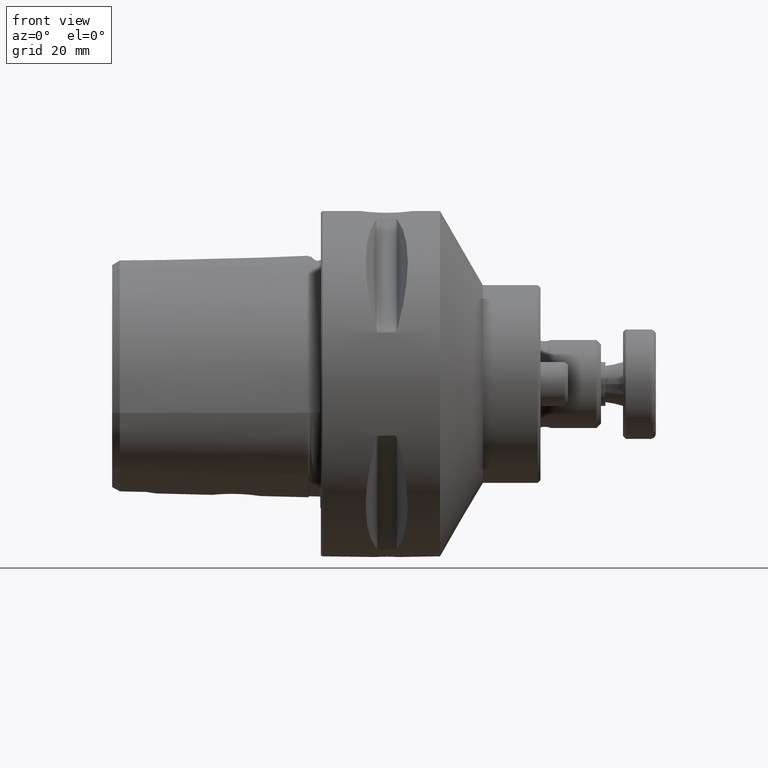
[diagram: clean part render]
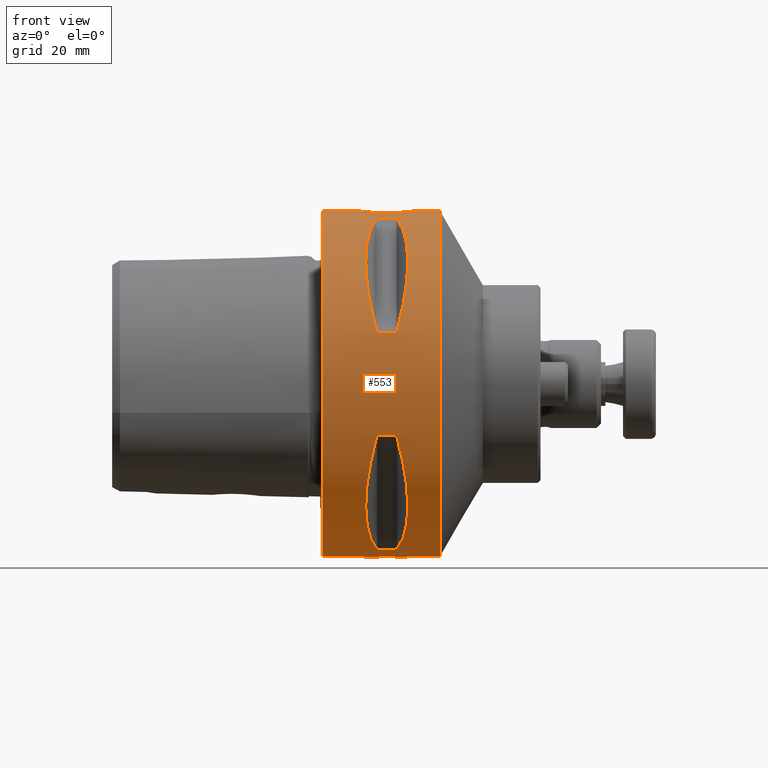
[diagram: same view with one face highlighted and labeled with its STEP entity id]
A machine part, front view. The second image highlights one B-rep face of the part: STEP entity #553.
In plain terms, the highlighted cylindrical surface (bore or boss wall) has radius 31.5 mm, axis along (1, 0, 0).
Its self-contained STEP definition (entity closure, byte-faithful):
#553 = ADVANCED_FACE( '', ( #1175, #1176, #1177, #1178, #1179, #1180, #1181, #1182 ), #1183, .T. );
#1175 = FACE_OUTER_BOUND( '', #1909, .T. );
#1176 = FACE_BOUND( '', #1910, .T. );
#1177 = FACE_BOUND( '', #1911, .T. );
#1178 = FACE_OUTER_BOUND( '', #1912, .T. );
#1179 = FACE_BOUND( '', #1913, .T. );
#1180 = FACE_BOUND( '', #1914, .T. );
#1181 = FACE_BOUND( '', #1915, .T. );
#1182 = FACE_BOUND( '', #1916, .T. );
#1183 = CYLINDRICAL_SURFACE( '', #1917, 31.5000000000000 );
#1909 = EDGE_LOOP( '', ( #3054 ) );
#1910 = EDGE_LOOP( '', ( #3055 ) );
#1911 = EDGE_LOOP( '', ( #3056 ) );
#1912 = EDGE_LOOP( '', ( #3057 ) );
#1913 = EDGE_LOOP( '', ( #3058, #3059, #3060, #3061, #3062, #3063, #3064, #3065 ) );
#1914 = EDGE_LOOP( '', ( #3066, #3067, #3068, #3069, #3070, #3071, #3072, #3073 ) );
#1915 = EDGE_LOOP( '', ( #3074, #3075, #3076, #3077, #3078, #3079, #3080, #3081 ) );
#1916 = EDGE_LOOP( '', ( #3082, #3083, #3084, #3085, #3086, #3087, #3088, #3089 ) );
#1917 = AXIS2_PLACEMENT_3D( '', #3090, #3091, #3092 );
#3054 = ORIENTED_EDGE( '', *, *, #3991, .F. );
#3055 = ORIENTED_EDGE( '', *, *, #4240, .F. );
#3056 = ORIENTED_EDGE( '', *, *, #4241, .F. );
#3057 = ORIENTED_EDGE( '', *, *, #4242, .T. );
#3058 = ORIENTED_EDGE( '', *, *, #4219, .T. );
#3059 = ORIENTED_EDGE( '', *, *, #4243, .F. );
#3060 = ORIENTED_EDGE( '', *, *, #4244, .F. );
#3061 = ORIENTED_EDGE( '', *, *, #3902, .F. );
#3062 = ORIENTED_EDGE( '', *, *, #4130, .T. );
#3063 = ORIENTED_EDGE( '', *, *, #3904, .T. );
#3064 = ORIENTED_EDGE( '', *, *, #4245, .T. );
#3065 = ORIENTED_EDGE( '', *, *, #4246, .T. );
#3066 = ORIENTED_EDGE( '', *, *, #4236, .T. );
#3067 = ORIENTED_EDGE( '', *, *, #4247, .F. );
#3068 = ORIENTED_EDGE( '', *, *, #3934, .F. );
#3069 = ORIENTED_EDGE( '', *, *, #4248, .F. );
#3070 = ORIENTED_EDGE( '', *, *, #4249, .T. );
#3071 = ORIENTED_EDGE( '', *, *, #4250, .T. );
#3072 = ORIENTED_EDGE( '', *, *, #3936, .T. );
#3073 = ORIENTED_EDGE( '', *, *, #4251, .T. );
#3074 = ORIENTED_EDGE( '', *, *, #4112, .T. );
#3075 = ORIENTED_EDGE( '', *, *, #4154, .F. );
#3076 = ORIENTED_EDGE( '', *, *, #4252, .F. );
#3077 = ORIENTED_EDGE( '', *, *, #4183, .F. );
#3078 = ORIENTED_EDGE( '', *, *, #4253, .T. );
#3079 = ORIENTED_EDGE( '', *, *, #4185, .T. );
#3080 = ORIENTED_EDGE( '', *, *, #4254, .T. );
#3081 = ORIENTED_EDGE( '', *, *, #4155, .T. );
#3082 = ORIENTED_EDGE( '', *, *, #4233, .T. );
#3083 = ORIENTED_EDGE( '', *, *, #4255, .F. );
#3084 = ORIENTED_EDGE( '', *, *, #4256, .F. );
#3085 = ORIENTED_EDGE( '', *, *, #4257, .F. );
#3086 = ORIENTED_EDGE( '', *, *, #4069, .T. );
#3087 = ORIENTED_EDGE( '', *, *, #4258, .T. );
#3088 = ORIENTED_EDGE( '', *, *, #4259, .T. );
#3089 = ORIENTED_EDGE( '', *, *, #4260, .T. );
#3090 = CARTESIAN_POINT( '', ( -0.100000000000003, 0.000000000000000, 5.40241950567483E-015 ) );
#3091 = DIRECTION( '', ( 1.00000000000000, -0.000000000000000, 6.95237284268055E-017 ) );
#3092 = DIRECTION( '', ( -6.95237284268055E-017, 0.000000000000000, 1.00000000000000 ) );
#3902 = EDGE_CURVE( '', #4523, #4525, #4526, .T. );
#3904 = EDGE_CURVE( '', #4522, #4527, #4529, .T. );
#3934 = EDGE_CURVE( '', #4574, #4576, #4577, .T. );
#3936 = EDGE_CURVE( '', #4573, #4578, #4580, .T. );
#3991 = EDGE_CURVE( '', #4671, #4671, #4672, .F. );
#4069 = EDGE_CURVE( '', #4800, #4801, #4802, .F. );
#4112 = EDGE_CURVE( '', #4863, #4864, #4866, .F. );
#4130 = EDGE_CURVE( '', #4523, #4522, #4888, .F. );
#4154 = EDGE_CURVE( '', #4920, #4864, #4922, .T. );
#4155 = EDGE_CURVE( '', #4919, #4863, #4923, .T. );
#4183 = EDGE_CURVE( '', #4962, #4964, #4965, .T. );
#4185 = EDGE_CURVE( '', #4961, #4966, #4968, .T. );
#4219 = EDGE_CURVE( '', #5019, #5020, #5022, .F. );
#4233 = EDGE_CURVE( '', #5039, #5040, #5042, .F. );
#4236 = EDGE_CURVE( '', #5044, #5045, #5047, .F. );
#4240 = EDGE_CURVE( '', #5052, #5052, #5053, .F. );
#4241 = EDGE_CURVE( '', #5054, #5054, #5055, .F. );
#4242 = EDGE_CURVE( '', #5056, #5056, #5057, .F. );
#4243 = EDGE_CURVE( '', #5058, #5020, #5059, .T. );
#4244 = EDGE_CURVE( '', #4525, #5058, #5060, .T. );
#4245 = EDGE_CURVE( '', #4527, #5061, #5062, .T. );
#4246 = EDGE_CURVE( '', #5061, #5019, #5063, .T. );
#4247 = EDGE_CURVE( '', #4576, #5045, #5064, .T. );
#4248 = EDGE_CURVE( '', #5065, #4574, #5066, .T. );
#4249 = EDGE_CURVE( '', #5065, #5067, #5068, .F. );
#4250 = EDGE_CURVE( '', #5067, #4573, #5069, .T. );
#4251 = EDGE_CURVE( '', #4578, #5044, #5070, .T. );
#4252 = EDGE_CURVE( '', #4964, #4920, #5071, .T. );
#4253 = EDGE_CURVE( '', #4962, #4961, #5072, .F. );
#4254 = EDGE_CURVE( '', #4966, #4919, #5073, .T. );
#4255 = EDGE_CURVE( '', #5074, #5040, #5075, .T. );
#4256 = EDGE_CURVE( '', #5076, #5074, #5077, .T. );
#4257 = EDGE_CURVE( '', #4800, #5076, #5078, .T. );
#4258 = EDGE_CURVE( '', #4801, #5079, #5080, .T. );
#4259 = EDGE_CURVE( '', #5079, #5081, #5082, .T. );
#4260 = EDGE_CURVE( '', #5081, #5039, #5083, .T. );
#4522 = VERTEX_POINT( '', #5476 );
#4523 = VERTEX_POINT( '', #5477 );
#4525 = VERTEX_POINT( '', #5480 );
#4526 = B_SPLINE_CURVE_WITH_KNOTS( '', 3, ( #5481, #5482, #5483, #5484, #5485, #5486, #5487, #5488 ), .UNSPECIFIED., .F., .F., ( 4, 2, 2, 4 ), ( 3.50826111497558E-017, 0.000369746110241005, 0.000554619165361487, 0.000739492220481968 ), .UNSPECIFIED. );
#4527 = VERTEX_POINT( '', #5489 );
#4529 = B_SPLINE_CURVE_WITH_KNOTS( '', 3, ( #5492, #5493, #5494, #5495, #5496, #5497, #5498, #5499 ), .UNSPECIFIED., .F., .F., ( 4, 2, 2, 4 ), ( 9.96522768216898E-018, 0.000369907473114521, 0.000554861209671774, 0.000739814946229027 ), .UNSPECIFIED. );
#4573 = VERTEX_POINT( '', #5564 );
#4574 = VERTEX_POINT( '', #5565 );
#4576 = VERTEX_POINT( '', #5568 );
#4577 = LINE( '', #5569, #5570 );
#4578 = VERTEX_POINT( '', #5571 );
#4580 = LINE( '', #5574, #5575 );
#4671 = VERTEX_POINT( '', #5752 );
#4672 = CIRCLE( '', #5753, 31.5000000000000 );
#4800 = VERTEX_POINT( '', #5931 );
#4801 = VERTEX_POINT( '', #5932 );
#4802 = ELLIPSE( '', #5933, 36.3730669589464, 31.5000000000000 );
#4863 = VERTEX_POINT( '', #6049 );
#4864 = VERTEX_POINT( '', #6050 );
#4866 = ELLIPSE( '', #6053, 36.3730669589465, 31.5000000000000 );
#4888 = ELLIPSE( '', #6077, 36.3730669589464, 31.5000000000000 );
#4919 = VERTEX_POINT( '', #6181 );
#4920 = VERTEX_POINT( '', #6182 );
#4922 = B_SPLINE_CURVE_WITH_KNOTS( '', 3, ( #6185, #6186, #6187, #6188, #6189, #6190, #6191, #6192 ), .UNSPECIFIED., .F., .F., ( 4, 2, 2, 4 ), ( 1.73472347597681E-018, 0.000186192182164239, 0.000372384364328477, 0.000744768728656948 ), .UNSPECIFIED. );
#4923 = B_SPLINE_CURVE_WITH_KNOTS( '', 3, ( #6193, #6194, #6195, #6196, #6197, #6198, #6199, #6200 ), .UNSPECIFIED., .F., .F., ( 4, 2, 2, 4 ), ( 0.000000000000000, 0.000186260342528724, 0.000372520685057447, 0.000745041370114899 ), .UNSPECIFIED. );
#4961 = VERTEX_POINT( '', #6267 );
#4962 = VERTEX_POINT( '', #6268 );
#4964 = VERTEX_POINT( '', #6271 );
#4965 = B_SPLINE_CURVE_WITH_KNOTS( '', 3, ( #6272, #6273, #6274, #6275, #6276, #6277, #6278, #6279 ), .UNSPECIFIED., .F., .F., ( 4, 2, 2, 4 ), ( 9.96522768216898E-018, 0.000369746110240995, 0.000554619165361486, 0.000739492220481977 ), .UNSPECIFIED. );
#4966 = VERTEX_POINT( '', #6280 );
#4968 = B_SPLINE_CURVE_WITH_KNOTS( '', 3, ( #6283, #6284, #6285, #6286, #6287, #6288, #6289, #6290 ), .UNSPECIFIED., .F., .F., ( 4, 2, 2, 4 ), ( 1.36592263090745E-017, 0.000369907473114555, 0.000554861209671828, 0.000739814946229101 ), .UNSPECIFIED. );
#5019 = VERTEX_POINT( '', #6427 );
#5020 = VERTEX_POINT( '', #6428 );
#5022 = ELLIPSE( '', #6431, 36.3730669589465, 31.5000000000000 );
#5039 = VERTEX_POINT( '', #6453 );
#5040 = VERTEX_POINT( '', #6454 );
#5042 = ELLIPSE( '', #6457, 36.3730669589465, 31.5000000000000 );
#5044 = VERTEX_POINT( '', #6459 );
#5045 = VERTEX_POINT( '', #6460 );
#5047 = ELLIPSE( '', #6463, 36.3730669589465, 31.5000000000000 );
#5052 = VERTEX_POINT( '', #6468 );
#5053 = B_SPLINE_CURVE_WITH_KNOTS( '', 3, ( #6469, #6470, #6471, #6472, #6473, #6474, #6475, #6476, #6477, #6478, #6479, #6480, #6481, #6482, #6483, #6484, #6485, #6486, #6487, #6488, #6489, #6490, #6491, #6492, #6493, #6494, #6495, #6496, #6497, #6498, #6499, #6500, #6501, #6502, #6503, #6504, #6505, #6506, #6507, #6508, #6509, #6510, #6511, #6512, #6513, #6514, #6515, #6516, #6517, #6518, #6519, #6520, #6521, #6522, #6523, #6524, #6525, #6526, #6527, #6528, #6529, #6530, #6531, #6532, #6533, #6534, #6535, #6536, #6537, #6538 ), .UNSPECIFIED., .T., .F., ( 2, 2, 2, 2, 2, 2, 2, 2, 2, 2, 2, 2, 2, 2, 2, 2, 2, 2, 2, 2, 2, 2, 2, 2, 2, 2, 2, 2, 2, 2, 2, 2, 2, 2, 2, 2, 2 ), ( -0.000911095599910649, 0.000000000000000, 0.000911095599910650, 0.00182219119982130, 0.00273328679973195, 0.00318883459968728, 0.00364438239964260, 0.00455547799955325, 0.00546657359946390, 0.00637766919937455, 0.00728876479928520, 0.00819986039919585, 0.00911095599910650, 0.0100220515990171, 0.0109331471989278, 0.0118442427988384, 0.0127553383987491, 0.0136664339986597, 0.0145775295985704, 0.0154886251984810, 0.0163997207983917, 0.0173108163983023, 0.0182219119982130, 0.0186774597981683, 0.0191330075981236, 0.0200441031980343, 0.0209551987979449, 0.0218662943978556, 0.0227773899977662, 0.0236884855976769, 0.0245995811975875, 0.0255106767974982, 0.0264217723974088, 0.0273328679973195, 0.0282439635972301, 0.0291550591971408, 0.0300661547970514 ), .UNSPECIFIED. );
#5054 = VERTEX_POINT( '', #6539 );
#5055 = B_SPLINE_CURVE_WITH_KNOTS( '', 3, ( #6540, #6541, #6542, #6543, #6544, #6545, #6546, #6547, #6548, #6549, #6550, #6551, #6552, #6553, #6554, #6555, #6556, #6557, #6558, #6559, #6560, #6561, #6562, #6563, #6564, #6565, #6566, #6567, #6568, #6569, #6570, #6571, #6572, #6573, #6574, #6575, #6576, #6577, #6578, #6579, #6580, #6581, #6582, #6583, #6584, #6585, #6586, #6587, #6588, #6589, #6590, #6591, #6592, #6593, #6594, #6595 ), .UNSPECIFIED., .T., .F., ( 2, 2, 2, 2, 2, 2, 2, 2, 2, 2, 2, 2, 2, 2, 2, 2, 2, 2, 2, 2, 2, 2, 2, 2, 2, 2, 2, 2, 2, 2 ), ( -0.000781720966296071, 0.000000000000000, 0.000390860483148034, 0.000781720966296069, 0.00117258144944410, 0.00156344193259214, 0.00234516289888820, 0.00312688386518427, 0.00351774434833231, 0.00390860483148035, 0.00429946531462838, 0.00469032579777642, 0.00508118628092445, 0.00547204676407249, 0.00586290724722053, 0.00625376773036856, 0.00703548869666463, 0.00781720966296071, 0.00820807014610874, 0.00859893062925678, 0.00898979111240481, 0.00938065159555285, 0.00977151207870088, 0.0101623725618489, 0.0105532330449970, 0.0109440935281450, 0.0113349540112930, 0.0117258144944411, 0.0125075354607371, 0.0128983959438852 ), .UNSPECIFIED. );
#5056 = VERTEX_POINT( '', #6596 );
#5057 = CIRCLE( '', #6597, 31.5000000000000 );
#5058 = VERTEX_POINT( '', #6598 );
#5059 = B_SPLINE_CURVE_WITH_KNOTS( '', 3, ( #6599, #6600, #6601, #6602, #6603, #6604, #6605, #6606 ), .UNSPECIFIED., .F., .F., ( 4, 2, 2, 4 ), ( 1.73472347597681E-018, 0.000186192182164238, 0.000372384364328473, 0.000744768728656952 ), .UNSPECIFIED. );
#5060 = LINE( '', #6607, #6608 );
#5061 = VERTEX_POINT( '', #6609 );
#5062 = LINE( '', #6610, #6611 );
#5063 = B_SPLINE_CURVE_WITH_KNOTS( '', 3, ( #6612, #6613, #6614, #6615, #6616, #6617, #6618, #6619 ), .UNSPECIFIED., .F., .F., ( 4, 2, 2, 4 ), ( 0.000000000000000, 0.000186260342528732, 0.000372520685057464, 0.000745041370114930 ), .UNSPECIFIED. );
#5064 = B_SPLINE_CURVE_WITH_KNOTS( '', 3, ( #6620, #6621, #6622, #6623, #6624, #6625, #6626, #6627 ), .UNSPECIFIED., .F., .F., ( 4, 2, 2, 4 ), ( 5.20417042793042E-018, 0.000186192182164234, 0.000372384364328464, 0.000744768728656915 ), .UNSPECIFIED. );
#5065 = VERTEX_POINT( '', #6628 );
#5066 = B_SPLINE_CURVE_WITH_KNOTS( '', 3, ( #6629, #6630, #6631, #6632, #6633, #6634, #6635, #6636 ), .UNSPECIFIED., .F., .F., ( 4, 2, 2, 4 ), ( 3.20337251735390E-017, 0.000369746110240994, 0.000554619165361476, 0.000739492220481957 ), .UNSPECIFIED. );
#5067 = VERTEX_POINT( '', #6637 );
#5068 = ELLIPSE( '', #6638, 36.3730669589464, 31.5000000000000 );
#5069 = B_SPLINE_CURVE_WITH_KNOTS( '', 3, ( #6639, #6640, #6641, #6642, #6643, #6644, #6645, #6646 ), .UNSPECIFIED., .F., .F., ( 4, 2, 2, 4 ), ( 0.000000000000000, 0.000369907473114539, 0.000554861209671806, 0.000739814946229073 ), .UNSPECIFIED. );
#5070 = B_SPLINE_CURVE_WITH_KNOTS( '', 3, ( #6647, #6648, #6649, #6650, #6651, #6652, #6653, #6654 ), .UNSPECIFIED., .F., .F., ( 4, 2, 2, 4 ), ( 1.73472347597681E-018, 0.000186260342528714, 0.000372520685057427, 0.000745041370114853 ), .UNSPECIFIED. );
#5071 = LINE( '', #6655, #6656 );
#5072 = ELLIPSE( '', #6657, 36.3730669589464, 31.5000000000000 );
#5073 = LINE( '', #6658, #6659 );
#5074 = VERTEX_POINT( '', #6660 );
#5075 = B_SPLINE_CURVE_WITH_KNOTS( '', 3, ( #6661, #6662, #6663, #6664, #6665, #6666, #6667, #6668 ), .UNSPECIFIED., .F., .F., ( 4, 2, 2, 4 ), ( 5.48567729465110E-018, 0.000186192182164240, 0.000372384364328474, 0.000744768728656940 ), .UNSPECIFIED. );
#5076 = VERTEX_POINT( '', #6669 );
#5077 = LINE( '', #6670, #6671 );
#5078 = B_SPLINE_CURVE_WITH_KNOTS( '', 3, ( #6672, #6673, #6674, #6675, #6676, #6677, #6678, #6679 ), .UNSPECIFIED., .F., .F., ( 4, 2, 2, 4 ), ( 3.35479553959893E-017, 0.000369746110240996, 0.000554619165361475, 0.000739492220481954 ), .UNSPECIFIED. );
#5079 = VERTEX_POINT( '', #6680 );
#5080 = B_SPLINE_CURVE_WITH_KNOTS( '', 3, ( #6681, #6682, #6683, #6684, #6685, #6686, #6687, #6688 ), .UNSPECIFIED., .F., .F., ( 4, 2, 2, 4 ), ( 0.000000000000000, 0.000369907473114517, 0.000554861209671777, 0.000739814946229038 ), .UNSPECIFIED. );
#5081 = VERTEX_POINT( '', #6689 );
#5082 = LINE( '', #6690, #6691 );
#5083 = B_SPLINE_CURVE_WITH_KNOTS( '', 3, ( #6692, #6693, #6694, #6695, #6696, #6697, #6698, #6699 ), .UNSPECIFIED., .F., .F., ( 4, 2, 2, 4 ), ( 0.000000000000000, 0.000186260342528727, 0.000372520685057453, 0.000745041370114901 ), .UNSPECIFIED. );
#5476 = CARTESIAN_POINT( '', ( 13.9052558883258, -9.90936932068533, -29.9007424601173 ) );
#5477 = CARTESIAN_POINT( '', ( 13.9052558883258, -29.9007424601173, -9.90936932068530 ) );
#5480 = CARTESIAN_POINT( '', ( 13.4722431864335, -30.0684919588732, -9.38806643133620 ) );
#5481 = CARTESIAN_POINT( '', ( 13.9052558883258, -29.9007424601173, -9.90936932068534 ) );
#5482 = CARTESIAN_POINT( '', ( 13.8741106903637, -29.9385579830375, -9.79526395482003 ) );
#5483 = CARTESIAN_POINT( '', ( 13.8318364240293, -29.9746248411211, -9.68415762760122 ) );
#5484 = CARTESIAN_POINT( '', ( 13.7318908902040, -30.0225849061324, -9.53400002017093 ) );
#5485 = CARTESIAN_POINT( '', ( 13.6921605854999, -30.0374458800300, -9.48700732855355 ) );
#5486 = CARTESIAN_POINT( '', ( 13.5952725354937, -30.0603970261612, -9.41403174401505 ) );
#5487 = CARTESIAN_POINT( '', ( 13.5352072937471, -30.0684919588732, -9.38806643133614 ) );
#5488 = CARTESIAN_POINT( '', ( 13.4722431864335, -30.0684919588732, -9.38806643133614 ) );
#5489 = CARTESIAN_POINT( '', ( 13.4722431864335, -9.38806643133623, -30.0684919588732 ) );
#5492 = CARTESIAN_POINT( '', ( 13.9052558883258, -9.90936932068532, -29.9007424601173 ) );
#5493 = CARTESIAN_POINT( '', ( 13.8740970981216, -9.79521415748825, -29.9385744863117 ) );
#5494 = CARTESIAN_POINT( '', ( 13.8317923581456, -9.68404577222171, -29.9746610444640 ) );
#5495 = CARTESIAN_POINT( '', ( 13.7317833105137, -9.53386126297715, -30.0226289859924 ) );
#5496 = CARTESIAN_POINT( '', ( 13.6919747755344, -9.48682789514486, -30.0375024759582 ) );
#5497 = CARTESIAN_POINT( '', ( 13.5951321106067, -9.41396559223690, -30.0604176673158 ) );
#5498 = CARTESIAN_POINT( '', ( 13.5342953922733, -9.38806643133636, -30.0684919588731 ) );
#5499 = CARTESIAN_POINT( '', ( 13.4722431864335, -9.38806643133636, -30.0684919588731 ) );
#5564 = CARTESIAN_POINT( '', ( 13.4722431864335, 9.38806643133620, 30.0684919588732 ) );
#5565 = CARTESIAN_POINT( '', ( 13.4722431864335, 30.0684919588732, 9.38806643133619 ) );
#5568 = CARTESIAN_POINT( '', ( 10.5277568135664, 30.0684919588732, 9.38806643133623 ) );
#5569 = CARTESIAN_POINT( '', ( -0.100000000000002, 30.0684919588732, 9.38806643133623 ) );
#5570 = VECTOR( '', #7181, 1000.00000000000 );
#5571 = CARTESIAN_POINT( '', ( 10.5277568135664, 9.38806643133620, 30.0684919588732 ) );
#5574 = CARTESIAN_POINT( '', ( -0.100000000000004, 9.38806643133619, 30.0684919588732 ) );
#5575 = VECTOR( '', #7183, 1000.00000000000 );
#5752 = CARTESIAN_POINT( '', ( 21.7000000000000, 0.000000000000000, 31.5000000000000 ) );
#5753 = AXIS2_PLACEMENT_3D( '', #7253, #7254, #7255 );
#5931 = CARTESIAN_POINT( '', ( 13.9052558883258, 9.90936932068531, -29.9007424601173 ) );
#5932 = CARTESIAN_POINT( '', ( 13.9052558883258, 29.9007424601173, -9.90936932068531 ) );
#5933 = AXIS2_PLACEMENT_3D( '', #7366, #7367, #7368 );
#6049 = CARTESIAN_POINT( '', ( 10.0947441116742, -29.9007424601173, 9.90936932068533 ) );
#6050 = CARTESIAN_POINT( '', ( 10.0947441116742, -9.90936932068536, 29.9007424601173 ) );
#6053 = AXIS2_PLACEMENT_3D( '', #7407, #7408, #7409 );
#6077 = AXIS2_PLACEMENT_3D( '', #7433, #7434, #7435 );
#6181 = CARTESIAN_POINT( '', ( 10.5277568135664, -30.0684919588732, 9.38806643133616 ) );
#6182 = CARTESIAN_POINT( '', ( 10.5277568135664, -9.38806643133619, 30.0684919588732 ) );
#6185 = CARTESIAN_POINT( '', ( 10.5277568135664, -9.38806643133620, 30.0684919588732 ) );
#6186 = CARTESIAN_POINT( '', ( 10.4646998586686, -9.38806643133620, 30.0684919588732 ) );
#6187 = CARTESIAN_POINT( '', ( 10.4055697089231, -9.41341278471690, 30.0605916277936 ) );
#6188 = CARTESIAN_POINT( '', ( 10.3071221583898, -9.48753216685641, 30.0372808797886 ) );
#6189 = CARTESIAN_POINT( '', ( 10.2680899202017, -9.53402868155439, 30.0225757535049 ) );
#6190 = CARTESIAN_POINT( '', ( 10.1682000357447, -9.68410318856299, 29.9746422253183 ) );
#6191 = CARTESIAN_POINT( '', ( 10.1259010621354, -9.79522089767785, 29.9385722525535 ) );
#6192 = CARTESIAN_POINT( '', ( 10.0947441116741, -9.90936932068534, 29.9007424601173 ) );
#6193 = CARTESIAN_POINT( '', ( 10.5277568135664, -30.0684919588732, 9.38806643133616 ) );
#6194 = CARTESIAN_POINT( '', ( 10.4646767750731, -30.0684919588732, 9.38806643133616 ) );
#6195 = CARTESIAN_POINT( '', ( 10.4055281528916, -30.0605860326607, 9.41343075055104 ) );
#6196 = CARTESIAN_POINT( '', ( 10.3070556028226, -30.0372608712245, 9.48759561092396 ) );
#6197 = CARTESIAN_POINT( '', ( 10.2680189908378, -30.0225480813928, 9.53411595147813 ) );
#6198 = CARTESIAN_POINT( '', ( 10.1681225240588, -29.9745922806618, 9.68425829432339 ) );
#6199 = CARTESIAN_POINT( '', ( 10.1257016429922, -29.9383301240818, 9.79595150129554 ) );
#6200 = CARTESIAN_POINT( '', ( 10.0947441116742, -29.9007424601173, 9.90936932068532 ) );
#6267 = CARTESIAN_POINT( '', ( 13.9052558883258, -29.9007424601173, 9.90936932068533 ) );
#6268 = CARTESIAN_POINT( '', ( 13.9052558883258, -9.90936932068532, 29.9007424601173 ) );
#6271 = CARTESIAN_POINT( '', ( 13.4722431864335, -9.38806643133620, 30.0684919588732 ) );
#6272 = CARTESIAN_POINT( '', ( 13.9052558883258, -9.90936932068533, 29.9007424601173 ) );
#6273 = CARTESIAN_POINT( '', ( 13.8741106903637, -9.79526395482002, 29.9385579830375 ) );
#6274 = CARTESIAN_POINT( '', ( 13.8318364240292, -9.68415762760126, 29.9746248411211 ) );
#6275 = CARTESIAN_POINT( '', ( 13.7318908902039, -9.53400002017097, 30.0225849061324 ) );
#6276 = CARTESIAN_POINT( '', ( 13.6921605854999, -9.48700732855362, 30.0374458800300 ) );
#6277 = CARTESIAN_POINT( '', ( 13.5952725354936, -9.41403174401513, 30.0603970261611 ) );
#6278 = CARTESIAN_POINT( '', ( 13.5352072937471, -9.38806643133609, 30.0684919588732 ) );
#6279 = CARTESIAN_POINT( '', ( 13.4722431864336, -9.38806643133609, 30.0684919588732 ) );
#6280 = CARTESIAN_POINT( '', ( 13.4722431864335, -30.0684919588732, 9.38806643133619 ) );
#6283 = CARTESIAN_POINT( '', ( 13.9052558883258, -29.9007424601173, 9.90936932068533 ) );
#6284 = CARTESIAN_POINT( '', ( 13.8740970981216, -29.9385744863117, 9.79521415748824 ) );
#6285 = CARTESIAN_POINT( '', ( 13.8317923581457, -29.9746610444640, 9.68404577222163 ) );
#6286 = CARTESIAN_POINT( '', ( 13.7317833105139, -30.0226289859925, 9.53386126297703 ) );
#6287 = CARTESIAN_POINT( '', ( 13.6919747755346, -30.0375024759583, 9.48682789514469 ) );
#6288 = CARTESIAN_POINT( '', ( 13.5951321106069, -30.0604176673159, 9.41396559223668 ) );
#6289 = CARTESIAN_POINT( '', ( 13.5342953922732, -30.0684919588732, 9.38806643133608 ) );
#6290 = CARTESIAN_POINT( '', ( 13.4722431864335, -30.0684919588732, 9.38806643133608 ) );
#6427 = CARTESIAN_POINT( '', ( 10.0947441116742, -9.90936932068534, -29.9007424601173 ) );
#6428 = CARTESIAN_POINT( '', ( 10.0947441116742, -29.9007424601173, -9.90936932068536 ) );
#6431 = AXIS2_PLACEMENT_3D( '', #7526, #7527, #7528 );
#6453 = CARTESIAN_POINT( '', ( 10.0947441116742, 29.9007424601173, -9.90936932068535 ) );
#6454 = CARTESIAN_POINT( '', ( 10.0947441116742, 9.90936932068534, -29.9007424601173 ) );
#6457 = AXIS2_PLACEMENT_3D( '', #7544, #7545, #7546 );
#6459 = CARTESIAN_POINT( '', ( 10.0947441116742, 9.90936932068533, 29.9007424601173 ) );
#6460 = CARTESIAN_POINT( '', ( 10.0947441116742, 29.9007424601173, 9.90936932068532 ) );
#6463 = AXIS2_PLACEMENT_3D( '', #7548, #7549, #7550 );
#6468 = CARTESIAN_POINT( '', ( 8.10635435873101, -2.63211129999641, 31.3898389627031 ) );
#6469 = CARTESIAN_POINT( '', ( 8.29464946806317, -2.87437999268500, 31.3695241670643 ) );
#6470 = CARTESIAN_POINT( '', ( 7.91805924939886, -2.38984260730781, 31.4101537583419 ) );
#6471 = CARTESIAN_POINT( '', ( 7.75711019777702, -2.13242482657826, 31.4289263211342 ) );
#6472 = CARTESIAN_POINT( '', ( 7.49026310256222, -1.58695194015373, 31.4611860691859 ) );
#6473 = CARTESIAN_POINT( '', ( 7.38404019915011, -1.29560734365692, 31.4747263178733 ) );
#6474 = CARTESIAN_POINT( '', ( 7.23901891166467, -0.706006265715912, 31.4934683756288 ) );
#6475 = CARTESIAN_POINT( '', ( 7.19851079630303, -0.405733845300824, 31.4988728223896 ) );
#6476 = CARTESIAN_POINT( '', ( 7.18753424777033, 0.0531977551172297, 31.5003265420761 ) );
#6477 = CARTESIAN_POINT( '', ( 7.19238098150179, 0.207477737712824, 31.4996823822952 ) );
#6478 = CARTESIAN_POINT( '', ( 7.21859668272150, 0.511018184738415, 31.4962203702602 ) );
#6479 = CARTESIAN_POINT( '', ( 7.23991206790512, 0.661281627382363, 31.4934097699456 ) );
#6480 = CARTESIAN_POINT( '', ( 7.32799494294589, 1.10764370502468, 31.4819271128118 ) );
#6481 = CARTESIAN_POINT( '', ( 7.42029991592783, 1.40263836207484, 31.4700007475556 ) );
#6482 = CARTESIAN_POINT( '', ( 7.66316177856092, 1.96163038888354, 31.4401073096662 ) );
#6483 = CARTESIAN_POINT( '', ( 7.81256586788777, 2.22541201127120, 31.4222813526983 ) );
#6484 = CARTESIAN_POINT( '', ( 8.16538373736693, 2.72276569905561, 31.3830968990648 ) );
#6485 = CARTESIAN_POINT( '', ( 8.36807895323462, 2.95411711942292, 31.3618662195327 ) );
#6486 = CARTESIAN_POINT( '', ( 8.80961870466377, 3.36895651270016, 31.3200190412246 ) );
#6487 = CARTESIAN_POINT( '', ( 9.05199910626577, 3.55607667804578, 31.2990614647810 ) );
#6488 = CARTESIAN_POINT( '', ( 9.56877322247964, 3.88198791735171, 31.2603118942505 ) );
#6489 = CARTESIAN_POINT( '', ( 9.83924192760309, 4.01881415170162, 31.2427894647710 ) );
#6490 = CARTESIAN_POINT( '', ( 10.4032592472412, 4.24278988486424, 31.2131622031286 ) );
#6491 = CARTESIAN_POINT( '', ( 10.6997197829220, 4.33023071294370, 31.2010049922886 ) );
#6492 = CARTESIAN_POINT( '', ( 11.2963446550496, 4.44923387608647, 31.1842577027580 ) );
#6493 = CARTESIAN_POINT( '', ( 11.5976334258055, 4.48181079500671, 31.1795350592487 ) );
#6494 = CARTESIAN_POINT( '', ( 12.2061355272056, 4.49344052831350, 31.1778611635190 ) );
#6495 = CARTESIAN_POINT( '', ( 12.5146667244116, 4.47172997825294, 31.1810198552209 ) );
#6496 = CARTESIAN_POINT( '', ( 13.1137216155550, 4.37536592823234, 31.1946877080722 ) );
#6497 = CARTESIAN_POINT( '', ( 13.4072274969412, 4.30103805060461, 31.2051519396487 ) );
#6498 = CARTESIAN_POINT( '', ( 13.9818774108875, 4.09854972407172, 31.2323922562557 ) );
#6499 = CARTESIAN_POINT( '', ( 14.2619028325215, 3.97002694883122, 31.2491924621651 ) );
#6500 = CARTESIAN_POINT( '', ( 14.7858087174884, 3.66801152221028, 31.2860805308817 ) );
#6501 = CARTESIAN_POINT( '', ( 15.0327940325640, 3.49359456695820, 31.3063094228504 ) );
#6502 = CARTESIAN_POINT( '', ( 15.4949491162349, 3.09473167841080, 31.3482511237258 ) );
#6503 = CARTESIAN_POINT( '', ( 15.7061373788878, 2.87300062391422, 31.3696194618504 ) );
#6504 = CARTESIAN_POINT( '', ( 16.0770311922021, 2.39652237762005, 31.4096137871811 ) );
#6505 = CARTESIAN_POINT( '', ( 16.2391729261089, 2.13927526636225, 31.4284844050818 ) );
#6506 = CARTESIAN_POINT( '', ( 16.5093855248776, 1.58840639062822, 31.4611362764276 ) );
#6507 = CARTESIAN_POINT( '', ( 16.6132946106366, 1.30366313558022, 31.4743861981960 ) );
#6508 = CARTESIAN_POINT( '', ( 16.7592686486367, 0.715665752203608, 31.4932428729622 ) );
#6509 = CARTESIAN_POINT( '', ( 16.8011349908808, 0.408276991448462, 31.4988259306348 ) );
#6510 = CARTESIAN_POINT( '', ( 16.8162840733286, -0.200735664844491, 31.5008322160389 ) );
#6511 = CARTESIAN_POINT( '', ( 16.7907845827808, -0.503024780668964, 31.4974136124611 ) );
#6512 = CARTESIAN_POINT( '', ( 16.7027545275149, -0.953123872946345, 31.4859346285595 ) );
#6513 = CARTESIAN_POINT( '', ( 16.6648463338197, -1.10287922840994, 31.4810242755897 ) );
#6514 = CARTESIAN_POINT( '', ( 16.5741826901301, -1.39407455794103, 31.4694739098007 ) );
#6515 = CARTESIAN_POINT( '', ( 16.5212934512602, -1.53643605954308, 31.4628162056607 ) );
#6516 = CARTESIAN_POINT( '', ( 16.3406354937256, -1.95411910247216, 31.4405657703283 ) );
#6517 = CARTESIAN_POINT( '', ( 16.1890530961815, -2.22275215863541, 31.4224700045445 ) );
#6518 = CARTESIAN_POINT( '', ( 15.8366970057111, -2.72020627516012, 31.3833192343607 ) );
#6519 = CARTESIAN_POINT( '', ( 15.6373184020223, -2.94848237374371, 31.3624055401826 ) );
#6520 = CARTESIAN_POINT( '', ( 15.1940802582158, -3.36603355901806, 31.3203423936380 ) );
#6521 = CARTESIAN_POINT( '', ( 14.9500481425775, -3.55441563975046, 31.2992449059901 ) );
#6522 = CARTESIAN_POINT( '', ( 14.4375861400925, -3.87834118516380, 31.2607592978276 ) );
#6523 = CARTESIAN_POINT( '', ( 14.1669263773925, -4.01615670234809, 31.2431366886537 ) );
#6524 = CARTESIAN_POINT( '', ( 13.5963948971542, -4.24313308227078, 31.2131210623010 ) );
#6525 = CARTESIAN_POINT( '', ( 13.3048643191808, -4.32896782444364, 31.2011805205551 ) );
#6526 = CARTESIAN_POINT( '', ( 12.7102344189151, -4.44826366902586, 31.1843963967905 ) );
#6527 = CARTESIAN_POINT( '', ( 12.4044965968783, -4.48172645548203, 31.1795471957337 ) );
#6528 = CARTESIAN_POINT( '', ( 11.7931977232860, -4.49349679734876, 31.1778530672811 ) );
#6529 = CARTESIAN_POINT( '', ( 11.4906463401405, -4.47225745910451, 31.1809436910520 ) );
#6530 = CARTESIAN_POINT( '', ( 10.8916183608209, -4.37654632919029, 31.1945216099481 ) );
#6531 = CARTESIAN_POINT( '', ( 10.5921318106164, -4.30084116194975, 31.2051789198814 ) );
#6532 = CARTESIAN_POINT( '', ( 10.0179144924912, -4.09844748378837, 31.2324055164625 ) );
#6533 = CARTESIAN_POINT( '', ( 9.74293319626818, -3.97247683773518, 31.2488816693423 ) );
#6534 = CARTESIAN_POINT( '', ( 9.21748061025245, -3.67024046121697, 31.2858196754975 ) );
#6535 = CARTESIAN_POINT( '', ( 8.96510790034957, -3.49192068574856, 31.3064921727403 ) );
#6536 = CARTESIAN_POINT( '', ( 8.50471054775926, -3.09430036949356, 31.3482897055129 ) );
#6537 = CARTESIAN_POINT( '', ( 8.29464946806317, -2.87437999268500, 31.3695241670643 ) );
#6538 = CARTESIAN_POINT( '', ( 7.91805924939886, -2.38984260730781, 31.4101537583419 ) );
#6539 = CARTESIAN_POINT( '', ( 10.0000000000000, -3.22495623195696E-017, -31.5000000000000 ) );
#6540 = CARTESIAN_POINT( '', ( 10.0000000000000, 0.264330525086718, -31.5000000000000 ) );
#6541 = CARTESIAN_POINT( '', ( 10.0000000000000, -0.132165262543358, -31.5000000000000 ) );
#6542 = CARTESIAN_POINT( '', ( 10.0129718584888, -0.262115323547486, -31.4991688408924 ) );
#6543 = CARTESIAN_POINT( '', ( 10.0637920281812, -0.517768256907586, -31.4960038440121 ) );
#6544 = CARTESIAN_POINT( '', ( 10.1022593516481, -0.644797763456899, -31.4936328214275 ) );
#6545 = CARTESIAN_POINT( '', ( 10.2026575877202, -0.886985894581409, -31.4877425114832 ) );
#6546 = CARTESIAN_POINT( '', ( 10.2640906186934, -1.00184738713428, -31.4842520961179 ) );
#6547 = CARTESIAN_POINT( '', ( 10.4092254502383, -1.21922758295842, -31.4765835557159 ) );
#6548 = CARTESIAN_POINT( '', ( 10.4936805676462, -1.32212515015705, -31.4723768919532 ) );
#6549 = CARTESIAN_POINT( '', ( 10.7704000180045, -1.59879218916483, -31.4599420232010 ) );
#6550 = CARTESIAN_POINT( '', ( 10.9934769099226, -1.74779027964481, -31.4516329411247 ) );
#6551 = CARTESIAN_POINT( '', ( 11.4747602721429, -1.94730142010950, -31.4399109843539 ) );
#6552 = CARTESIAN_POINT( '', ( 11.7379906911339, -1.99985952310620, -31.4364527564351 ) );
#6553 = CARTESIAN_POINT( '', ( 12.1293928928218, -2.00006980548429, -31.4364393781822 ) );
#6554 = CARTESIAN_POINT( '', ( 12.2619159209307, -1.98708403475715, -31.4372732678160 ) );
#6555 = CARTESIAN_POINT( '', ( 12.5184463741718, -1.93605688654334, -31.4404570133545 ) );
#6556 = CARTESIAN_POINT( '', ( 12.6431332084683, -1.89830168739295, -31.4427887803439 ) );
#6557 = CARTESIAN_POINT( '', ( 12.8853124707039, -1.79816335448421, -31.4486744415766 ) );
#6558 = CARTESIAN_POINT( '', ( 13.0024060028540, -1.73555768707267, -31.4522350729924 ) );
#6559 = CARTESIAN_POINT( '', ( 13.2191210062094, -1.59082439380772, -31.4598876240840 ) );
#6560 = CARTESIAN_POINT( '', ( 13.3201398330721, -1.50819704652814, -31.4640122144242 ) );
#6561 = CARTESIAN_POINT( '', ( 13.5069247205243, -1.32159199327658, -31.4724024752465 ) );
#6562 = CARTESIAN_POINT( '', ( 13.5897816017204, -1.22047692940040, -31.4765336768500 ) );
#6563 = CARTESIAN_POINT( '', ( 13.7346658667943, -1.00394412541055, -31.4841838458316 ) );
#6564 = CARTESIAN_POINT( '', ( 13.7973033746152, -0.887073917809438, -31.4877402430124 ) );
#6565 = CARTESIAN_POINT( '', ( 13.8977521980150, -0.644776047159272, -31.4936334771981 ) );
#6566 = CARTESIAN_POINT( '', ( 13.9356032990322, -0.520112048698297, -31.4959665157622 ) );
#6567 = CARTESIAN_POINT( '', ( 13.9868248642885, -0.263825004634441, -31.4991558565010 ) );
#6568 = CARTESIAN_POINT( '', ( 13.9999529909058, -0.131253008888845, -31.4999970152958 ) );
#6569 = CARTESIAN_POINT( '', ( 14.0000936312460, 0.260351183885144, -31.5000059448406 ) );
#6570 = CARTESIAN_POINT( '', ( 13.9477688818742, 0.523516515209088, -31.4965700744370 ) );
#6571 = CARTESIAN_POINT( '', ( 13.7486578198169, 1.00502188438222, -31.4848841034476 ) );
#6572 = CARTESIAN_POINT( '', ( 13.5997954833596, 1.22827342386632, -31.4765862105626 ) );
#6573 = CARTESIAN_POINT( '', ( 13.3234745240342, 1.50512972275520, -31.4641560873062 ) );
#6574 = CARTESIAN_POINT( '', ( 13.2207108756606, 1.58964316959889, -31.4599481230236 ) );
#6575 = CARTESIAN_POINT( '', ( 13.0033273182811, 1.73506044303915, -31.4522632980361 ) );
#6576 = CARTESIAN_POINT( '', ( 12.8885285503247, 1.79657164209754, -31.4487657247830 ) );
#6577 = CARTESIAN_POINT( '', ( 12.6466518269007, 1.89710149035236, -31.4428615302866 ) );
#6578 = CARTESIAN_POINT( '', ( 12.5194982189004, 1.93574651357036, -31.4404761360024 ) );
#6579 = CARTESIAN_POINT( '', ( 12.2638322094678, 1.98680284112135, -31.4372910520905 ) );
#6580 = CARTESIAN_POINT( '', ( 12.1339661717118, 1.99986769966698, -31.4364522362359 ) );
#6581 = CARTESIAN_POINT( '', ( 11.8700136449802, 2.00013032046492, -31.4364355281967 ) );
#6582 = CARTESIAN_POINT( '', ( 11.7396093215561, 1.98725332022088, -31.4372623882654 ) );
#6583 = CARTESIAN_POINT( '', ( 11.4839585581768, 1.93666731641508, -31.4404192391403 ) );
#6584 = CARTESIAN_POINT( '', ( 11.3570930090624, 1.89839095179325, -31.4427834970009 ) );
#6585 = CARTESIAN_POINT( '', ( 11.1145725511165, 1.79812008431322, -31.4486770215778 ) );
#6586 = CARTESIAN_POINT( '', ( 10.9996459124562, 1.73676406017233, -31.4521686119605 ) );
#6587 = CARTESIAN_POINT( '', ( 10.7822744436242, 1.59191776499954, -31.4598324475096 ) );
#6588 = CARTESIAN_POINT( '', ( 10.6792606309620, 1.50754025050489, -31.4640404447016 ) );
#6589 = CARTESIAN_POINT( '', ( 10.4945600853800, 1.32313293031663, -31.4723344854083 ) );
#6590 = CARTESIAN_POINT( '', ( 10.4117303511234, 1.22255986704718, -31.4764557713809 ) );
#6591 = CARTESIAN_POINT( '', ( 10.2654779125259, 1.00433372646820, -31.4841743471556 ) );
#6592 = CARTESIAN_POINT( '', ( 10.2031094317335, 0.887778616546939, -31.4877170618923 ) );
#6593 = CARTESIAN_POINT( '', ( 10.0531532801668, 0.526929022513175, -31.4965117492773 ) );
#6594 = CARTESIAN_POINT( '', ( 10.0000000000000, 0.264330525086718, -31.5000000000000 ) );
#6595 = CARTESIAN_POINT( '', ( 10.0000000000000, -0.132165262543358, -31.5000000000000 ) );
#6596 = CARTESIAN_POINT( '', ( 0.299999999999991, 0.000000000000000, 31.5000000000000 ) );
#6597 = AXIS2_PLACEMENT_3D( '', #7554, #7555, #7556 );
#6598 = CARTESIAN_POINT( '', ( 10.5277568135664, -30.0684919588732, -9.38806643133620 ) );
#6599 = CARTESIAN_POINT( '', ( 10.5277568135664, -30.0684919588732, -9.38806643133621 ) );
#6600 = CARTESIAN_POINT( '', ( 10.4646998586686, -30.0684919588732, -9.38806643133621 ) );
#6601 = CARTESIAN_POINT( '', ( 10.4055697089230, -30.0605916277936, -9.41341278471681 ) );
#6602 = CARTESIAN_POINT( '', ( 10.3071221583897, -30.0372808797886, -9.48753216685632 ) );
#6603 = CARTESIAN_POINT( '', ( 10.2680899202016, -30.0225757535049, -9.53402868155438 ) );
#6604 = CARTESIAN_POINT( '', ( 10.1682000357447, -29.9746422253182, -9.68410318856298 ) );
#6605 = CARTESIAN_POINT( '', ( 10.1259010621354, -29.9385722525535, -9.79522089767785 ) );
#6606 = CARTESIAN_POINT( '', ( 10.0947441116742, -29.9007424601173, -9.90936932068534 ) );
#6607 = CARTESIAN_POINT( '', ( -0.100000000000004, -30.0684919588732, -9.38806643133620 ) );
#6608 = VECTOR( '', #7557, 1000.00000000000 );
#6609 = CARTESIAN_POINT( '', ( 10.5277568135664, -9.38806643133624, -30.0684919588732 ) );
#6610 = CARTESIAN_POINT( '', ( -0.100000000000002, -9.38806643133623, -30.0684919588731 ) );
#6611 = VECTOR( '', #7558, 1000.00000000000 );
#6612 = CARTESIAN_POINT( '', ( 10.5277568135664, -9.38806643133623, -30.0684919588731 ) );
#6613 = CARTESIAN_POINT( '', ( 10.4646767750731, -9.38806643133623, -30.0684919588731 ) );
#6614 = CARTESIAN_POINT( '', ( 10.4055281528917, -9.41343075055126, -30.0605860326607 ) );
#6615 = CARTESIAN_POINT( '', ( 10.3070556028226, -9.48759561092415, -30.0372608712244 ) );
#6616 = CARTESIAN_POINT( '', ( 10.2680189908380, -9.53411595147825, -30.0225480813927 ) );
#6617 = CARTESIAN_POINT( '', ( 10.1681225240589, -9.68425829432347, -29.9745922806618 ) );
#6618 = CARTESIAN_POINT( '', ( 10.1257016429922, -9.79595150129560, -29.9383301240818 ) );
#6619 = CARTESIAN_POINT( '', ( 10.0947441116743, -9.90936932068535, -29.9007424601173 ) );
#6620 = CARTESIAN_POINT( '', ( 10.5277568135664, 30.0684919588732, 9.38806643133620 ) );
#6621 = CARTESIAN_POINT( '', ( 10.4646998586686, 30.0684919588732, 9.38806643133620 ) );
#6622 = CARTESIAN_POINT( '', ( 10.4055697089231, 30.0605916277936, 9.41341278471690 ) );
#6623 = CARTESIAN_POINT( '', ( 10.3071221583898, 30.0372808797885, 9.48753216685639 ) );
#6624 = CARTESIAN_POINT( '', ( 10.2680899202017, 30.0225757535049, 9.53402868155440 ) );
#6625 = CARTESIAN_POINT( '', ( 10.1682000357447, 29.9746422253183, 9.68410318856298 ) );
#6626 = CARTESIAN_POINT( '', ( 10.1259010621354, 29.9385722525535, 9.79522089767782 ) );
#6627 = CARTESIAN_POINT( '', ( 10.0947441116742, 29.9007424601173, 9.90936932068530 ) );
#6628 = CARTESIAN_POINT( '', ( 13.9052558883258, 29.9007424601174, 9.90936932068530 ) );
#6629 = CARTESIAN_POINT( '', ( 13.9052558883258, 29.9007424601173, 9.90936932068532 ) );
#6630 = CARTESIAN_POINT( '', ( 13.8741106903637, 29.9385579830375, 9.79526395482002 ) );
#6631 = CARTESIAN_POINT( '', ( 13.8318364240292, 29.9746248411211, 9.68415762760124 ) );
#6632 = CARTESIAN_POINT( '', ( 13.7318908902039, 30.0225849061323, 9.53400002017096 ) );
#6633 = CARTESIAN_POINT( '', ( 13.6921605854998, 30.0374458800300, 9.48700732855361 ) );
#6634 = CARTESIAN_POINT( '', ( 13.5952725354937, 30.0603970261611, 9.41403174401512 ) );
#6635 = CARTESIAN_POINT( '', ( 13.5352072937471, 30.0684919588732, 9.38806643133610 ) );
#6636 = CARTESIAN_POINT( '', ( 13.4722431864336, 30.0684919588732, 9.38806643133610 ) );
#6637 = CARTESIAN_POINT( '', ( 13.9052558883258, 9.90936932068530, 29.9007424601173 ) );
#6638 = AXIS2_PLACEMENT_3D( '', #7559, #7560, #7561 );
#6639 = CARTESIAN_POINT( '', ( 13.9052558883258, 9.90936932068530, 29.9007424601173 ) );
#6640 = CARTESIAN_POINT( '', ( 13.8740970981216, 9.79521415748822, 29.9385744863117 ) );
#6641 = CARTESIAN_POINT( '', ( 13.8317923581457, 9.68404577222162, 29.9746610444640 ) );
#6642 = CARTESIAN_POINT( '', ( 13.7317833105138, 9.53386126297703, 30.0226289859925 ) );
#6643 = CARTESIAN_POINT( '', ( 13.6919747755346, 9.48682789514468, 30.0375024759583 ) );
#6644 = CARTESIAN_POINT( '', ( 13.5951321106069, 9.41396559223667, 30.0604176673159 ) );
#6645 = CARTESIAN_POINT( '', ( 13.5342953922732, 9.38806643133607, 30.0684919588732 ) );
#6646 = CARTESIAN_POINT( '', ( 13.4722431864335, 9.38806643133608, 30.0684919588732 ) );
#6647 = CARTESIAN_POINT( '', ( 10.5277568135664, 9.38806643133619, 30.0684919588732 ) );
#6648 = CARTESIAN_POINT( '', ( 10.4646767750731, 9.38806643133619, 30.0684919588732 ) );
#6649 = CARTESIAN_POINT( '', ( 10.4055281528916, 9.41343075055104, 30.0605860326607 ) );
#6650 = CARTESIAN_POINT( '', ( 10.3070556028226, 9.48759561092396, 30.0372608712245 ) );
#6651 = CARTESIAN_POINT( '', ( 10.2680189908378, 9.53411595147813, 30.0225480813928 ) );
#6652 = CARTESIAN_POINT( '', ( 10.1681225240588, 9.68425829432339, 29.9745922806619 ) );
#6653 = CARTESIAN_POINT( '', ( 10.1257016429922, 9.79595150129556, 29.9383301240818 ) );
#6654 = CARTESIAN_POINT( '', ( 10.0947441116742, 9.90936932068532, 29.9007424601173 ) );
#6655 = CARTESIAN_POINT( '', ( -0.100000000000004, -9.38806643133620, 30.0684919588732 ) );
#6656 = VECTOR( '', #7562, 1000.00000000000 );
#6657 = AXIS2_PLACEMENT_3D( '', #7563, #7564, #7565 );
#6658 = CARTESIAN_POINT( '', ( -0.100000000000002, -30.0684919588732, 9.38806643133618 ) );
#6659 = VECTOR( '', #7566, 1000.00000000000 );
#6660 = CARTESIAN_POINT( '', ( 10.5277568135664, 9.38806643133624, -30.0684919588731 ) );
#6661 = CARTESIAN_POINT( '', ( 10.5277568135664, 9.38806643133622, -30.0684919588732 ) );
#6662 = CARTESIAN_POINT( '', ( 10.4646998586686, 9.38806643133622, -30.0684919588732 ) );
#6663 = CARTESIAN_POINT( '', ( 10.4055697089231, 9.41341278471693, -30.0605916277936 ) );
#6664 = CARTESIAN_POINT( '', ( 10.3071221583898, 9.48753216685642, -30.0372808797885 ) );
#6665 = CARTESIAN_POINT( '', ( 10.2680899202017, 9.53402868155442, -30.0225757535049 ) );
#6666 = CARTESIAN_POINT( '', ( 10.1682000357447, 9.68410318856300, -29.9746422253183 ) );
#6667 = CARTESIAN_POINT( '', ( 10.1259010621354, 9.79522089767784, -29.9385722525535 ) );
#6668 = CARTESIAN_POINT( '', ( 10.0947441116742, 9.90936932068532, -29.9007424601173 ) );
#6669 = CARTESIAN_POINT( '', ( 13.4722431864335, 9.38806643133622, -30.0684919588732 ) );
#6670 = CARTESIAN_POINT( '', ( -0.100000000000002, 9.38806643133624, -30.0684919588731 ) );
#6671 = VECTOR( '', #7567, 1000.00000000000 );
#6672 = CARTESIAN_POINT( '', ( 13.9052558883257, 9.90936932068534, -29.9007424601173 ) );
#6673 = CARTESIAN_POINT( '', ( 13.8741106903636, 9.79526395482004, -29.9385579830374 ) );
#6674 = CARTESIAN_POINT( '', ( 13.8318364240292, 9.68415762760126, -29.9746248411211 ) );
#6675 = CARTESIAN_POINT( '', ( 13.7318908902039, 9.53400002017098, -30.0225849061323 ) );
#6676 = CARTESIAN_POINT( '', ( 13.6921605854999, 9.48700732855364, -30.0374458800300 ) );
#6677 = CARTESIAN_POINT( '', ( 13.5952725354937, 9.41403174401515, -30.0603970261611 ) );
#6678 = CARTESIAN_POINT( '', ( 13.5352072937471, 9.38806643133613, -30.0684919588731 ) );
#6679 = CARTESIAN_POINT( '', ( 13.4722431864336, 9.38806643133613, -30.0684919588732 ) );
#6680 = CARTESIAN_POINT( '', ( 13.4722431864335, 30.0684919588732, -9.38806643133623 ) );
#6681 = CARTESIAN_POINT( '', ( 13.9052558883258, 29.9007424601173, -9.90936932068531 ) );
#6682 = CARTESIAN_POINT( '', ( 13.8740970981216, 29.9385744863117, -9.79521415748823 ) );
#6683 = CARTESIAN_POINT( '', ( 13.8317923581457, 29.9746610444640, -9.68404577222163 ) );
#6684 = CARTESIAN_POINT( '', ( 13.7317833105139, 30.0226289859925, -9.53386126297704 ) );
#6685 = CARTESIAN_POINT( '', ( 13.6919747755346, 30.0375024759583, -9.48682789514470 ) );
#6686 = CARTESIAN_POINT( '', ( 13.5951321106069, 30.0604176673159, -9.41396559223669 ) );
#6687 = CARTESIAN_POINT( '', ( 13.5342953922732, 30.0684919588732, -9.38806643133609 ) );
#6688 = CARTESIAN_POINT( '', ( 13.4722431864335, 30.0684919588732, -9.38806643133609 ) );
#6689 = CARTESIAN_POINT( '', ( 10.5277568135664, 30.0684919588732, -9.38806643133622 ) );
#6690 = CARTESIAN_POINT( '', ( -0.100000000000004, 30.0684919588732, -9.38806643133622 ) );
#6691 = VECTOR( '', #7568, 1000.00000000000 );
#6692 = CARTESIAN_POINT( '', ( 10.5277568135664, 30.0684919588732, -9.38806643133622 ) );
#6693 = CARTESIAN_POINT( '', ( 10.4646767750731, 30.0684919588732, -9.38806643133622 ) );
#6694 = CARTESIAN_POINT( '', ( 10.4055281528916, 30.0605860326607, -9.41343075055107 ) );
#6695 = CARTESIAN_POINT( '', ( 10.3070556028226, 30.0372608712245, -9.48759561092400 ) );
#6696 = CARTESIAN_POINT( '', ( 10.2680189908378, 30.0225480813928, -9.53411595147817 ) );
#6697 = CARTESIAN_POINT( '', ( 10.1681225240588, 29.9745922806618, -9.68425829432342 ) );
#6698 = CARTESIAN_POINT( '', ( 10.1257016429921, 29.9383301240818, -9.79595150129558 ) );
#6699 = CARTESIAN_POINT( '', ( 10.0947441116742, 29.9007424601173, -9.90936932068535 ) );
#7181 = DIRECTION( '', ( -1.00000000000000, 0.000000000000000, -6.95237284268055E-017 ) );
#7183 = DIRECTION( '', ( -1.00000000000000, 0.000000000000000, -6.95237284268055E-017 ) );
#7253 = CARTESIAN_POINT( '', ( 21.7000000000000, 0.000000000000000, 6.12323399573676E-016 ) );
#7254 = DIRECTION( '', ( -1.00000000000000, 0.000000000000000, 0.000000000000000 ) );
#7255 = DIRECTION( '', ( 0.000000000000000, 0.000000000000000, 1.00000000000000 ) );
#7366 = CARTESIAN_POINT( '', ( -2.34715418936220, 0.000000000000000, 5.24618896808045E-015 ) );
#7367 = DIRECTION( '', ( -0.866025403784439, 0.353553390593273, -0.353553390593273 ) );
#7368 = DIRECTION( '', ( -0.500000000000000, -0.612372435695795, 0.612372435695795 ) );
#7407 = CARTESIAN_POINT( '', ( 26.3471541893622, 0.000000000000000, 7.24112427119789E-015 ) );
#7408 = DIRECTION( '', ( 0.866025403784439, -0.353553390593274, 0.353553390593274 ) );
#7409 = DIRECTION( '', ( -0.500000000000000, -0.612372435695794, 0.612372435695794 ) );
#7433 = CARTESIAN_POINT( '', ( -2.34715418936220, 0.000000000000000, 5.24618896808045E-015 ) );
#7434 = DIRECTION( '', ( -0.866025403784439, -0.353553390593273, -0.353553390593273 ) );
#7435 = DIRECTION( '', ( -0.500000000000000, 0.612372435695795, 0.612372435695795 ) );
#7526 = CARTESIAN_POINT( '', ( 26.3471541893622, 0.000000000000000, 7.24112427119789E-015 ) );
#7527 = DIRECTION( '', ( 0.866025403784439, -0.353553390593274, -0.353553390593274 ) );
#7528 = DIRECTION( '', ( -0.500000000000000, -0.612372435695794, -0.612372435695794 ) );
#7544 = CARTESIAN_POINT( '', ( 26.3471541893622, 0.000000000000000, 7.24112427119789E-015 ) );
#7545 = DIRECTION( '', ( 0.866025403784439, 0.353553390593273, -0.353553390593274 ) );
#7546 = DIRECTION( '', ( -0.500000000000000, 0.612372435695794, -0.612372435695795 ) );
#7548 = CARTESIAN_POINT( '', ( 26.3471541893622, 0.000000000000000, 7.24112427119789E-015 ) );
#7549 = DIRECTION( '', ( 0.866025403784439, 0.353553390593274, 0.353553390593274 ) );
#7550 = DIRECTION( '', ( -0.500000000000000, 0.612372435695795, 0.612372435695794 ) );
#7554 = CARTESIAN_POINT( '', ( 0.299999999999993, 0.000000000000000, 5.43022899704555E-015 ) );
#7555 = DIRECTION( '', ( -1.00000000000000, 0.000000000000000, -6.95237284268060E-017 ) );
#7556 = DIRECTION( '', ( -6.95237284268060E-017, 0.000000000000000, 1.00000000000000 ) );
#7557 = DIRECTION( '', ( -1.00000000000000, 0.000000000000000, -6.95237284268055E-017 ) );
#7558 = DIRECTION( '', ( -1.00000000000000, 0.000000000000000, -6.95237284268055E-017 ) );
#7559 = CARTESIAN_POINT( '', ( -2.34715418936220, 0.000000000000000, 5.24618896808045E-015 ) );
#7560 = DIRECTION( '', ( -0.866025403784439, 0.353553390593273, 0.353553390593273 ) );
#7561 = DIRECTION( '', ( -0.500000000000000, -0.612372435695795, -0.612372435695795 ) );
#7562 = DIRECTION( '', ( -1.00000000000000, 0.000000000000000, -6.95237284268055E-017 ) );
#7563 = CARTESIAN_POINT( '', ( -2.34715418936220, 0.000000000000000, 5.24618896808045E-015 ) );
#7564 = DIRECTION( '', ( -0.866025403784439, -0.353553390593273, 0.353553390593273 ) );
#7565 = DIRECTION( '', ( -0.500000000000000, 0.612372435695795, -0.612372435695795 ) );
#7566 = DIRECTION( '', ( -1.00000000000000, 0.000000000000000, -6.95237284268055E-017 ) );
#7567 = DIRECTION( '', ( -1.00000000000000, 0.000000000000000, -6.95237284268055E-017 ) );
#7568 = DIRECTION( '', ( -1.00000000000000, 0.000000000000000, -6.95237284268055E-017 ) );